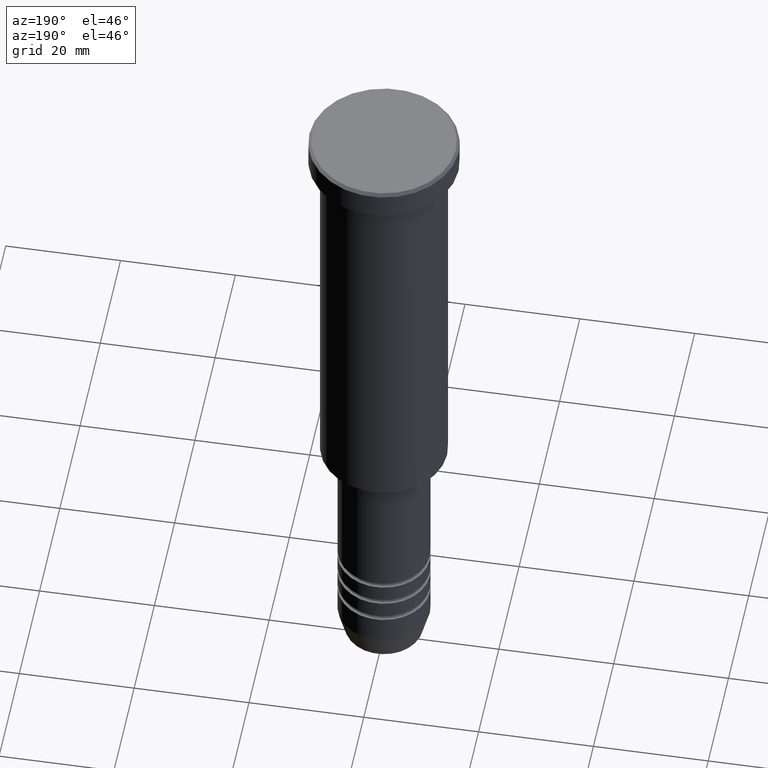
[diagram: clean part render]
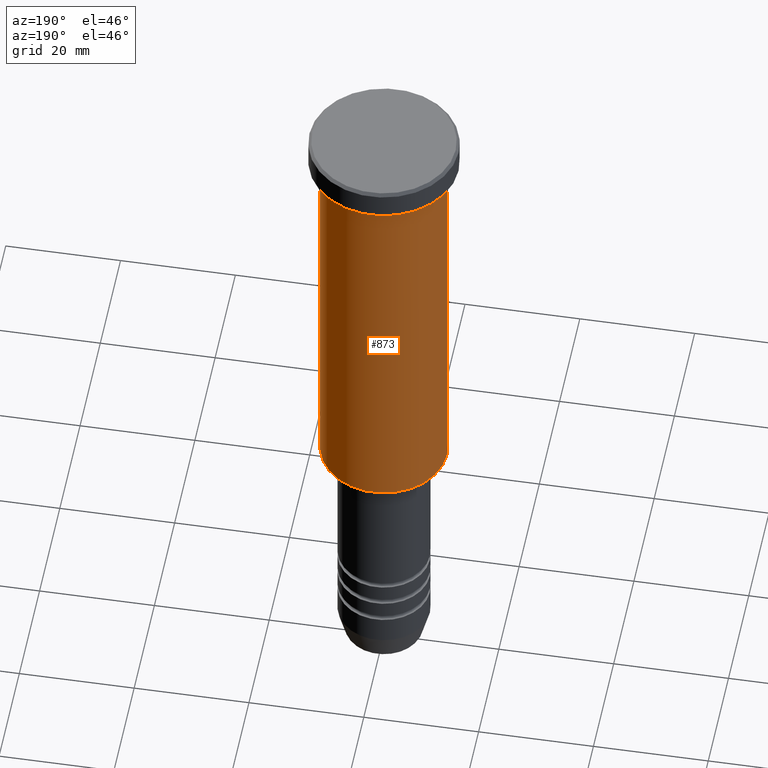
[diagram: same view with one face highlighted and labeled with its STEP entity id]
A machine part, auxiliary view. The second image highlights one B-rep face of the part: STEP entity #873.
In plain terms, the highlighted cylindrical surface (partial cylindrical patch) has radius 11 mm, axis along (-0, -0, 1).
Its self-contained STEP definition (entity closure, byte-faithful):
#7 = VERTEX_POINT ( 'NONE', #472 ) ;
#54 = DIRECTION ( 'NONE',  ( -0.000000000000000000, -0.000000000000000000, 1.000000000000000000 ) ) ;
#79 = DIRECTION ( 'NONE',  ( -1.000000000000000000, 0.000000000000000000, 0.000000000000000000 ) ) ;
#222 = DIRECTION ( 'NONE',  ( -0.000000000000000000, -0.000000000000000000, 1.000000000000000000 ) ) ;
#241 = DIRECTION ( 'NONE',  ( -0.000000000000000000, -0.000000000000000000, 1.000000000000000000 ) ) ;
#263 = ORIENTED_EDGE ( 'NONE', *, *, #583, .T. ) ;
#310 = ORIENTED_EDGE ( 'NONE', *, *, #618, .F. ) ;
#314 = CARTESIAN_POINT ( 'NONE',  ( 11.00000000000000000, 0.000000000000000000, 0.000000000000000000 ) ) ;
#329 = CARTESIAN_POINT ( 'NONE',  ( 0.000000000000000000, 0.000000000000000000, 0.000000000000000000 ) ) ;
#372 = CARTESIAN_POINT ( 'NONE',  ( -11.00000000000000000, 1.347111479062088405E-15, -75.50000000000001421 ) ) ;
#376 = AXIS2_PLACEMENT_3D ( 'NONE', #329, #241, #603 ) ;
#403 = VERTEX_POINT ( 'NONE', #717 ) ;
#406 = DIRECTION ( 'NONE',  ( 1.000000000000000000, 0.000000000000000000, 0.000000000000000000 ) ) ;
#431 = AXIS2_PLACEMENT_3D ( 'NONE', #527, #894, #79 ) ;
#472 = CARTESIAN_POINT ( 'NONE',  ( 11.00000000000000000, 0.000000000000000000, -5.999999999999999112 ) ) ;
#477 = EDGE_CURVE ( 'NONE', #7, #739, #793, .T. ) ;
#478 = LINE ( 'NONE', #314, #610 ) ;
#501 = FACE_OUTER_BOUND ( 'NONE', #676, .T. ) ;
#527 = CARTESIAN_POINT ( 'NONE',  ( 0.000000000000000000, 0.000000000000000000, -75.50000000000001421 ) ) ;
#583 = EDGE_CURVE ( 'NONE', #939, #739, #598, .T. ) ;
#598 = LINE ( 'NONE', #961, #709 ) ;
#603 = DIRECTION ( 'NONE',  ( 1.000000000000000000, 0.000000000000000000, 0.000000000000000000 ) ) ;
#610 = VECTOR ( 'NONE', #844, 1000.000000000000000 ) ;
#618 = EDGE_CURVE ( 'NONE', #403, #7, #478, .T. ) ;
#676 = EDGE_LOOP ( 'NONE', ( #1163, #263, #822, #310 ) ) ;
#690 = AXIS2_PLACEMENT_3D ( 'NONE', #864, #54, #406 ) ;
#709 = VECTOR ( 'NONE', #222, 1000.000000000000000 ) ;
#717 = CARTESIAN_POINT ( 'NONE',  ( 11.00000000000000000, 0.000000000000000000, -75.50000000000001421 ) ) ;
#739 = VERTEX_POINT ( 'NONE', #938 ) ;
#775 = CYLINDRICAL_SURFACE ( 'NONE', #376, 11.00000000000000000 ) ;
#778 = CIRCLE ( 'NONE', #431, 11.00000000000000000 ) ;
#793 = CIRCLE ( 'NONE', #690, 11.00000000000000000 ) ;
#822 = ORIENTED_EDGE ( 'NONE', *, *, #477, .F. ) ;
#844 = DIRECTION ( 'NONE',  ( -0.000000000000000000, -0.000000000000000000, 1.000000000000000000 ) ) ;
#849 = EDGE_CURVE ( 'NONE', #403, #939, #778, .T. ) ;
#864 = CARTESIAN_POINT ( 'NONE',  ( 0.000000000000000000, 0.000000000000000000, -5.999999999999999112 ) ) ;
#873 = ADVANCED_FACE ( 'NONE', ( #501 ), #775, .T. ) ;
#894 = DIRECTION ( 'NONE',  ( -0.000000000000000000, -0.000000000000000000, 1.000000000000000000 ) ) ;
#938 = CARTESIAN_POINT ( 'NONE',  ( -11.00000000000000000, 1.347111479062088405E-15, -5.999999999999999112 ) ) ;
#939 = VERTEX_POINT ( 'NONE', #372 ) ;
#961 = CARTESIAN_POINT ( 'NONE',  ( -11.00000000000000000, 1.347111479062088405E-15, 0.000000000000000000 ) ) ;
#1163 = ORIENTED_EDGE ( 'NONE', *, *, #849, .T. ) ;